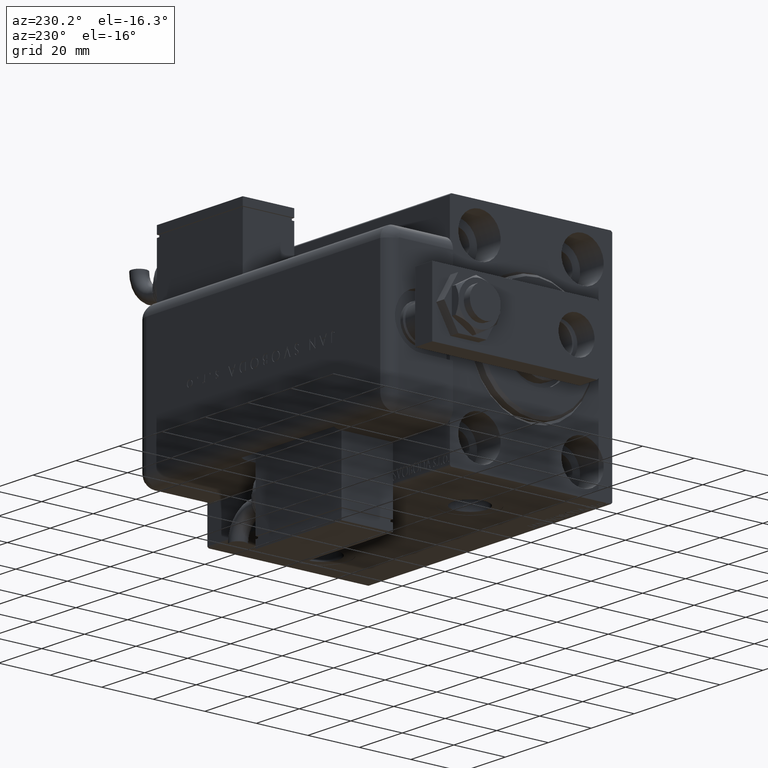
[diagram: clean part render]
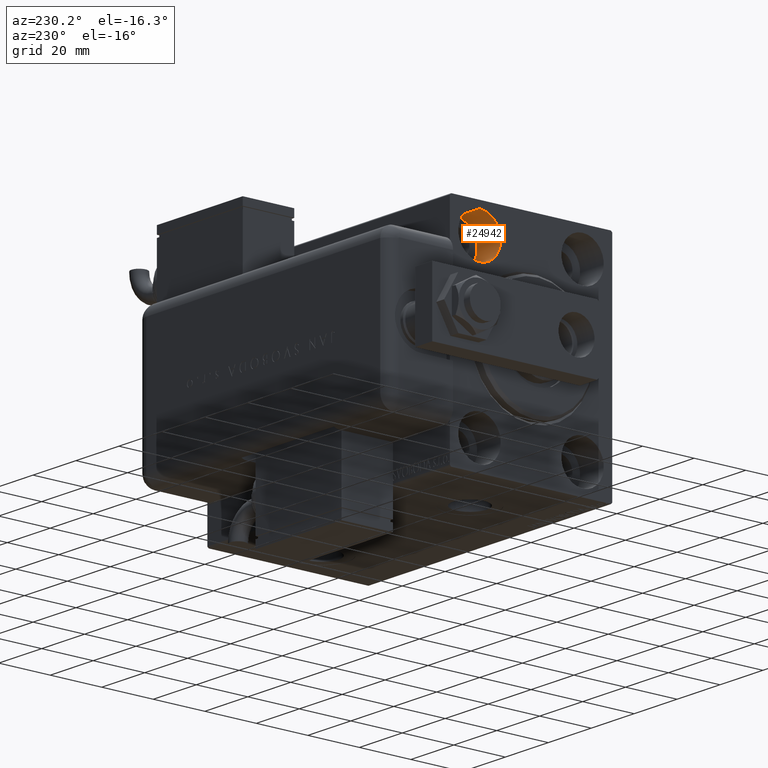
[diagram: same view with one face highlighted and labeled with its STEP entity id]
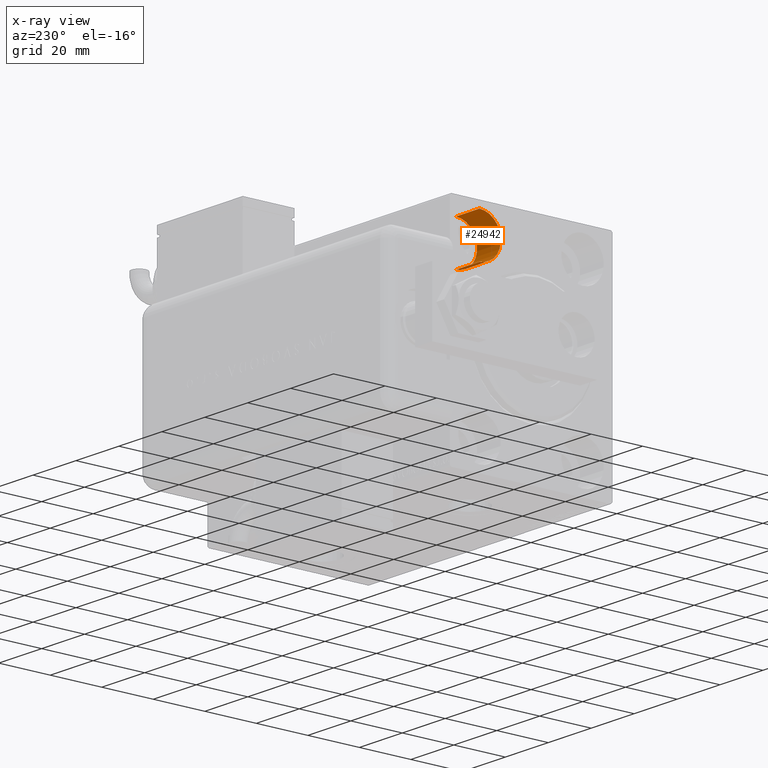
[diagram: x-ray of the same camera — body ghosted, the highlighted face saturated]
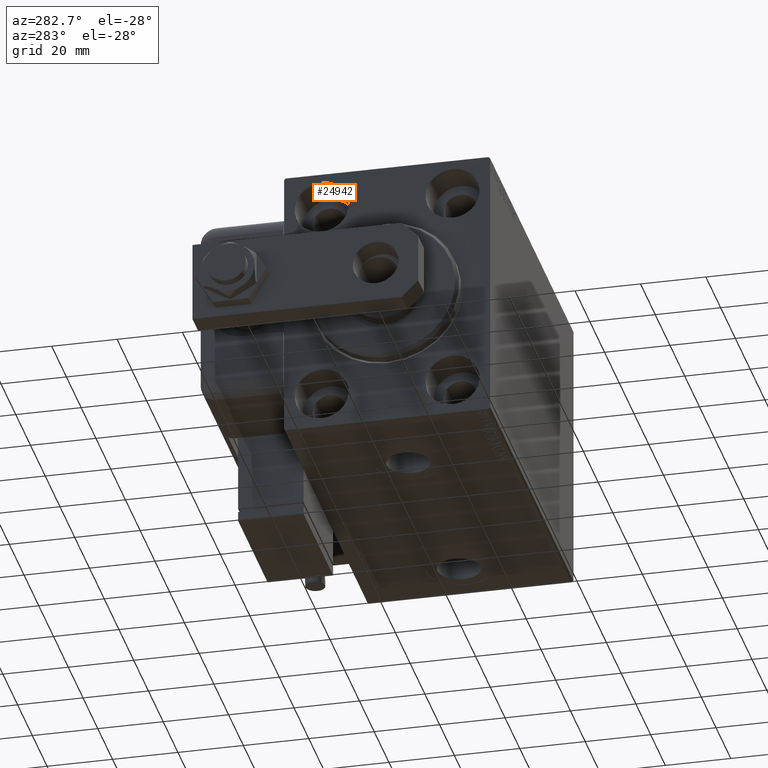
[diagram: same view with one face highlighted and labeled with its STEP entity id]
A machine part, auxiliary view. The second image highlights one B-rep face of the part: STEP entity #24942.
The next image is the same camera in x-ray: the body ghosted, the highlighted face saturated — about 1% of this face is hidden behind the body in this view.
A second angle (auxiliary view) of the same face is appended — the face is thin or edge-on in the first view.
In plain terms, the highlighted cylindrical surface (edge-blend (fillet) strip) has radius 8.25 mm, axis along (-1, -0, -0).
Its self-contained STEP definition (entity closure, byte-faithful):
#1435 = CARTESIAN_POINT ( 'NONE',  ( 11.00000000000000000, 20.00000000000000355, 23.25000000000000355 ) ) ;
#1893 = VECTOR ( 'NONE', #16929, 1000.000000000000000 ) ;
#2746 = AXIS2_PLACEMENT_3D ( 'NONE', #59309, #50361, #8116 ) ;
#2762 = CARTESIAN_POINT ( 'NONE',  ( 11.00000000000000000, 20.00000000000000355, 39.74999999999999289 ) ) ;
#2872 = DIRECTION ( 'NONE',  ( 0.000000000000000000, 0.000000000000000000, 1.000000000000000000 ) ) ;
#6899 = VECTOR ( 'NONE', #25478, 1000.000000000000000 ) ;
#7490 = CARTESIAN_POINT ( 'NONE',  ( 11.00000000000000000, 20.00000000000000355, 31.50000000000000000 ) ) ;
#8116 = DIRECTION ( 'NONE',  ( 0.000000000000000000, 0.000000000000000000, 1.000000000000000000 ) ) ;
#10735 = CIRCLE ( 'NONE', #21585, 8.249999999999992895 ) ;
#14657 = EDGE_CURVE ( 'NONE', #42910, #58168, #52973, .T. ) ;
#15183 = ORIENTED_EDGE ( 'NONE', *, *, #23216, .T. ) ;
#15714 = CARTESIAN_POINT ( 'NONE',  ( 11.00000000000000000, 20.00000000000000355, 31.50000000000000000 ) ) ;
#16929 = DIRECTION ( 'NONE',  ( -1.000000000000000000, -0.000000000000000000, -0.000000000000000000 ) ) ;
#20050 = ORIENTED_EDGE ( 'NONE', *, *, #14657, .T. ) ;
#20737 = AXIS2_PLACEMENT_3D ( 'NONE', #7490, #24256, #2872 ) ;
#21458 = EDGE_CURVE ( 'NONE', #59794, #59996, #10735, .T. ) ;
#21471 = EDGE_CURVE ( 'NONE', #59996, #58168, #44989, .T. ) ;
#21585 = AXIS2_PLACEMENT_3D ( 'NONE', #15714, #43769, #49327 ) ;
#22345 = CARTESIAN_POINT ( 'NONE',  ( 0.000000000000000000, 20.00000000000000355, 39.74999999999999289 ) ) ;
#23216 = EDGE_CURVE ( 'NONE', #59794, #42910, #57243, .T. ) ;
#23945 = CARTESIAN_POINT ( 'NONE',  ( 11.00000000000000000, 20.00000000000000355, 39.74999999999999289 ) ) ;
#24083 = CARTESIAN_POINT ( 'NONE',  ( 11.00000000000000000, 20.00000000000000355, 23.25000000000000355 ) ) ;
#24256 = DIRECTION ( 'NONE',  ( -1.000000000000000000, -0.000000000000000000, -0.000000000000000000 ) ) ;
#24942 = ADVANCED_FACE ( 'NONE', ( #52318 ), #58147, .F. ) ;
#25478 = DIRECTION ( 'NONE',  ( -1.000000000000000000, -0.000000000000000000, -0.000000000000000000 ) ) ;
#42910 = VERTEX_POINT ( 'NONE', #49804 ) ;
#43769 = DIRECTION ( 'NONE',  ( -1.000000000000000000, 0.000000000000000000, 0.000000000000000000 ) ) ;
#44989 = LINE ( 'NONE', #2762, #1893 ) ;
#45048 = ORIENTED_EDGE ( 'NONE', *, *, #21458, .F. ) ;
#45683 = EDGE_LOOP ( 'NONE', ( #45048, #15183, #20050, #48545 ) ) ;
#48545 = ORIENTED_EDGE ( 'NONE', *, *, #21471, .F. ) ;
#49327 = DIRECTION ( 'NONE',  ( 0.000000000000000000, 0.000000000000000000, 1.000000000000000000 ) ) ;
#49804 = CARTESIAN_POINT ( 'NONE',  ( 0.000000000000000000, 20.00000000000000355, 23.25000000000000355 ) ) ;
#50361 = DIRECTION ( 'NONE',  ( -1.000000000000000000, 0.000000000000000000, 0.000000000000000000 ) ) ;
#52318 = FACE_OUTER_BOUND ( 'NONE', #45683, .T. ) ;
#52973 = CIRCLE ( 'NONE', #2746, 8.249999999999992895 ) ;
#57243 = LINE ( 'NONE', #1435, #6899 ) ;
#58147 = CYLINDRICAL_SURFACE ( 'NONE', #20737, 8.249999999999992895 ) ;
#58168 = VERTEX_POINT ( 'NONE', #22345 ) ;
#59309 = CARTESIAN_POINT ( 'NONE',  ( 0.000000000000000000, 20.00000000000000355, 31.50000000000000000 ) ) ;
#59794 = VERTEX_POINT ( 'NONE', #24083 ) ;
#59996 = VERTEX_POINT ( 'NONE', #23945 ) ;